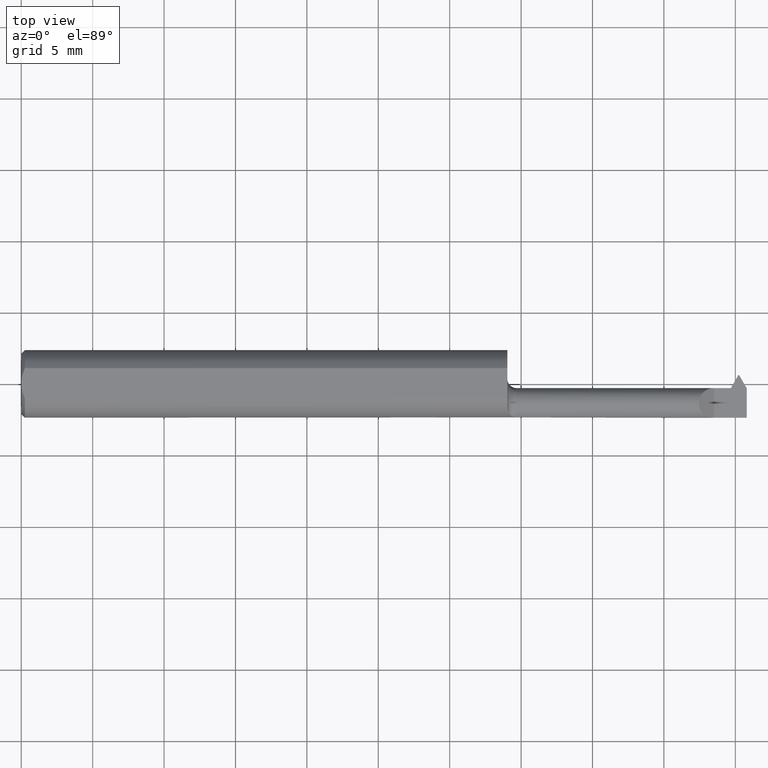
[diagram: clean part render]
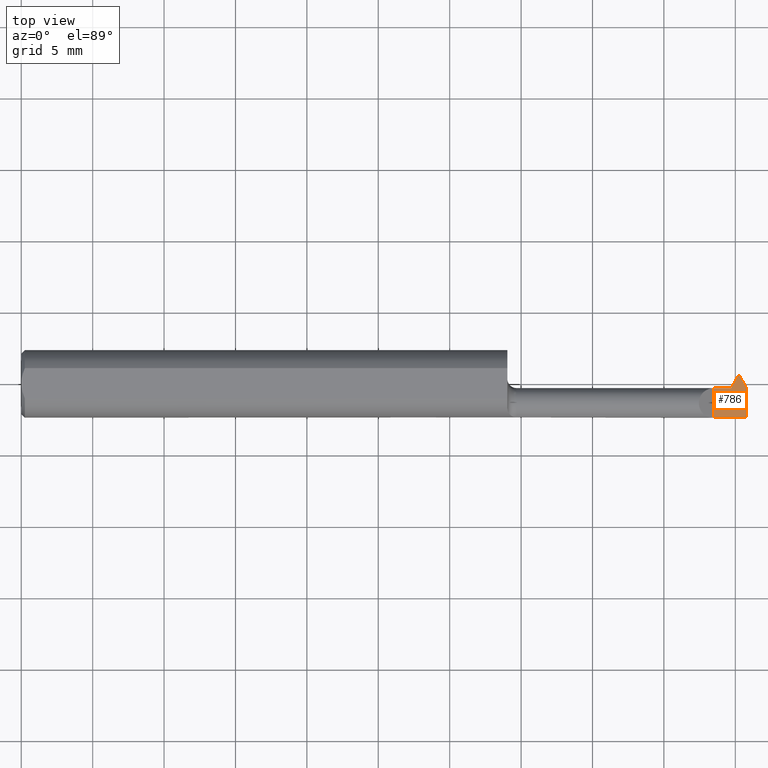
[diagram: same view with one face highlighted and labeled with its STEP entity id]
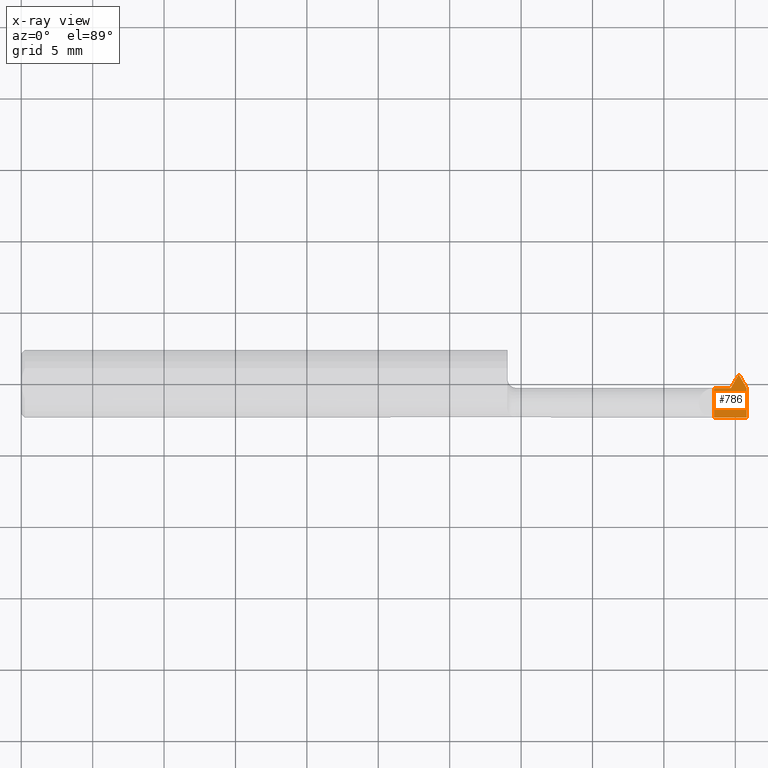
[diagram: x-ray of the same camera — body ghosted, the highlighted face saturated]
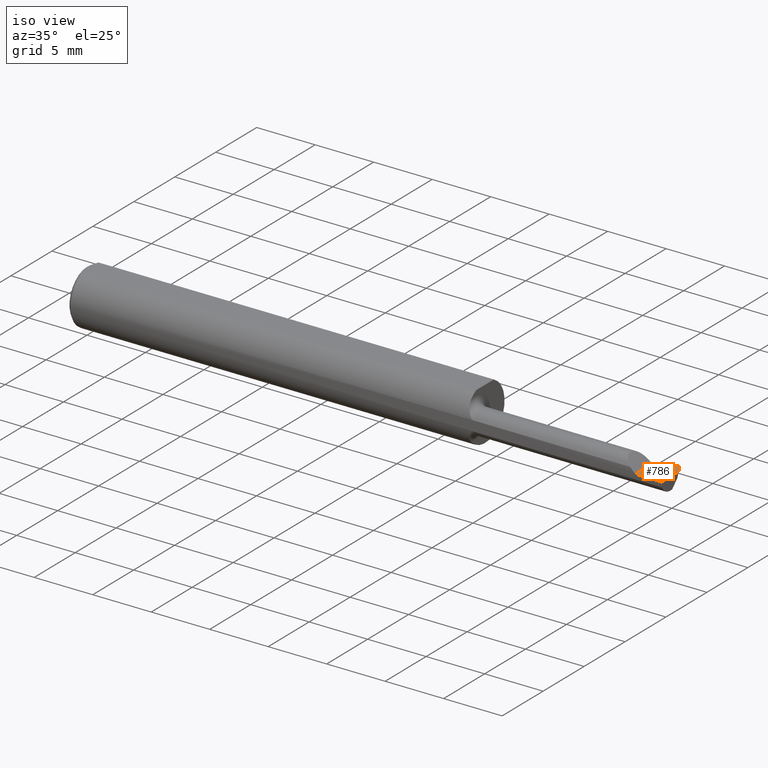
[diagram: same view with one face highlighted and labeled with its STEP entity id]
A machine part, top view. The second image highlights one B-rep face of the part: STEP entity #786.
The next image is the same camera in x-ray: the body ghosted, the highlighted face saturated — about 0% of this face is hidden behind the body in this view.
A second angle (iso view) of the same face is appended — the face is thin or edge-on in the first view.
In plain terms, the highlighted planar face has unit normal (-0, 0, -1).
Its self-contained STEP definition (entity closure, byte-faithful):
#1 = CARTESIAN_POINT ( 'NONE',  ( 2.000000000000000000, -0.2500000000000000555, 0.000000000000000000 ) ) ;
#12 = DIRECTION ( 'NONE',  ( -1.000000000000000000, -0.000000000000000000, -0.000000000000000000 ) ) ;
#17 = CARTESIAN_POINT ( 'NONE',  ( 2.999519565323725069E-32, -0.09359999999999998876, 2.449293598294709866E-16 ) ) ;
#22 = LINE ( 'NONE', #330, #309 ) ;
#23 = EDGE_LOOP ( 'NONE', ( #132, #486, #800, #478, #299, #454, #364, #421 ) ) ;
#39 = VERTEX_POINT ( 'NONE', #319 ) ;
#45 = CARTESIAN_POINT ( 'NONE',  ( 1.979000000000000092, 0.02439999999999998420, 0.000000000000000000 ) ) ;
#55 = EDGE_CURVE ( 'NONE', #57, #711, #511, .T. ) ;
#57 = VERTEX_POINT ( 'NONE', #577 ) ;
#69 = LINE ( 'NONE', #750, #204 ) ;
#91 = CARTESIAN_POINT ( 'NONE',  ( 1.976999999999999869, 0.02439999999999998420, 0.000000000000000000 ) ) ;
#103 = EDGE_CURVE ( 'NONE', #616, #57, #22, .T. ) ;
#104 = CARTESIAN_POINT ( 'NONE',  ( 1.979000000000000092, 0.02439999999999998420, 0.000000000000000000 ) ) ;
#108 = CARTESIAN_POINT ( 'NONE',  ( 1.910000000000000142, -0.2500000000000000555, 1.102182119232617911E-17 ) ) ;
#132 = ORIENTED_EDGE ( 'NONE', *, *, #368, .F. ) ;
#153 = CARTESIAN_POINT ( 'NONE',  ( 1.910000000000000142, -0.01159999999999993849, 8.082668874372542852E-17 ) ) ;
#169 = CARTESIAN_POINT ( 'NONE',  ( 1.956215390309173907, -0.01159999999999993849, 0.000000000000000000 ) ) ;
#177 = CARTESIAN_POINT ( 'NONE',  ( 1.976999999999999869, 0.02439999999999998420, 0.000000000000000000 ) ) ;
#181 = VERTEX_POINT ( 'NONE', #153 ) ;
#182 = CARTESIAN_POINT ( 'NONE',  ( 1.947215390309172900, -0.01159999999999992634, 0.000000000000000000 ) ) ;
#189 = DIRECTION ( 'NONE',  ( -1.000000000000000000, 0.000000000000000000, 1.224646799147355426E-16 ) ) ;
#193 = EDGE_CURVE ( 'NONE', #270, #39, #477, .T. ) ;
#201 = VECTOR ( 'NONE', #12, 39.37007874015748143 ) ;
#204 = VECTOR ( 'NONE', #573, 39.37007874015748143 ) ;
#248 = CARTESIAN_POINT ( 'NONE',  ( 1.339999999999999858, 0.02439999999999994951, 8.082668874372542852E-17 ) ) ;
#270 = VERTEX_POINT ( 'NONE', #182 ) ;
#299 = ORIENTED_EDGE ( 'NONE', *, *, #710, .F. ) ;
#309 = VECTOR ( 'NONE', #398, 39.37007874015748143 ) ;
#319 = CARTESIAN_POINT ( 'NONE',  ( 1.956215390309173907, -0.01159999999999993849, 0.000000000000000000 ) ) ;
#320 = PLANE ( 'NONE',  #468 ) ;
#330 = CARTESIAN_POINT ( 'NONE',  ( 2.000000000000000000, 0.000000000000000000, 0.000000000000000000 ) ) ;
#351 = LINE ( 'NONE', #104, #603 ) ;
#364 = ORIENTED_EDGE ( 'NONE', *, *, #103, .F. ) ;
#366 = EDGE_CURVE ( 'NONE', #39, #673, #488, .T. ) ;
#368 = EDGE_CURVE ( 'NONE', #673, #550, #431, .T. ) ;
#374 = DIRECTION ( 'NONE',  ( 1.000000000000000000, 2.788895906680674731E-17, 0.000000000000000000 ) ) ;
#396 = DIRECTION ( 'NONE',  ( -1.224646799147355426E-16, 0.000000000000000000, -1.000000000000000000 ) ) ;
#398 = DIRECTION ( 'NONE',  ( 0.000000000000000000, -1.000000000000000000, 0.000000000000000000 ) ) ;
#421 = ORIENTED_EDGE ( 'NONE', *, *, #639, .F. ) ;
#431 = LINE ( 'NONE', #248, #772 ) ;
#443 = FACE_OUTER_BOUND ( 'NONE', #23, .T. ) ;
#454 = ORIENTED_EDGE ( 'NONE', *, *, #55, .F. ) ;
#468 = AXIS2_PLACEMENT_3D ( 'NONE', #1, #396, #189 ) ;
#477 = LINE ( 'NONE', #169, #545 ) ;
#478 = ORIENTED_EDGE ( 'NONE', *, *, #510, .F. ) ;
#482 = LINE ( 'NONE', #108, #516 ) ;
#486 = ORIENTED_EDGE ( 'NONE', *, *, #366, .F. ) ;
#488 = LINE ( 'NONE', #177, #718 ) ;
#510 = EDGE_CURVE ( 'NONE', #181, #270, #69, .T. ) ;
#511 = LINE ( 'NONE', #17, #201 ) ;
#516 = VECTOR ( 'NONE', #548, 39.37007874015748143 ) ;
#528 = DIRECTION ( 'NONE',  ( 1.000000000000000000, -1.185697913916660375E-15, -0.000000000000000000 ) ) ;
#537 = CARTESIAN_POINT ( 'NONE',  ( 2.000000000000000000, -0.01197306695894668517, 0.000000000000000000 ) ) ;
#545 = VECTOR ( 'NONE', #528, 39.37007874015748143 ) ;
#548 = DIRECTION ( 'NONE',  ( -0.000000000000000000, 1.000000000000000000, -0.000000000000000000 ) ) ;
#550 = VERTEX_POINT ( 'NONE', #45 ) ;
#552 = DIRECTION ( 'NONE',  ( 0.4999999999999923395, 0.8660254037844431485, -0.000000000000000000 ) ) ;
#573 = DIRECTION ( 'NONE',  ( 1.000000000000000000, 2.788895906680674731E-17, 0.000000000000000000 ) ) ;
#577 = CARTESIAN_POINT ( 'NONE',  ( 2.000000000000000000, -0.09360000000000001652, 0.000000000000000000 ) ) ;
#583 = DIRECTION ( 'NONE',  ( 0.4999999999999948375, -0.8660254037844417052, 0.000000000000000000 ) ) ;
#599 = CARTESIAN_POINT ( 'NONE',  ( 1.910000000000000142, -0.09360000000000005815, 1.102182119232617911E-17 ) ) ;
#603 = VECTOR ( 'NONE', #583, 39.37007874015748143 ) ;
#616 = VERTEX_POINT ( 'NONE', #537 ) ;
#639 = EDGE_CURVE ( 'NONE', #550, #616, #351, .T. ) ;
#673 = VERTEX_POINT ( 'NONE', #91 ) ;
#710 = EDGE_CURVE ( 'NONE', #711, #181, #482, .T. ) ;
#711 = VERTEX_POINT ( 'NONE', #599 ) ;
#718 = VECTOR ( 'NONE', #552, 39.37007874015748854 ) ;
#750 = CARTESIAN_POINT ( 'NONE',  ( 1.339999999999999858, -0.01159999999999995236, 8.082668874372542852E-17 ) ) ;
#772 = VECTOR ( 'NONE', #374, 39.37007874015748143 ) ;
#786 = ADVANCED_FACE ( 'NONE', ( #443 ), #320, .F. ) ;
#800 = ORIENTED_EDGE ( 'NONE', *, *, #193, .F. ) ;